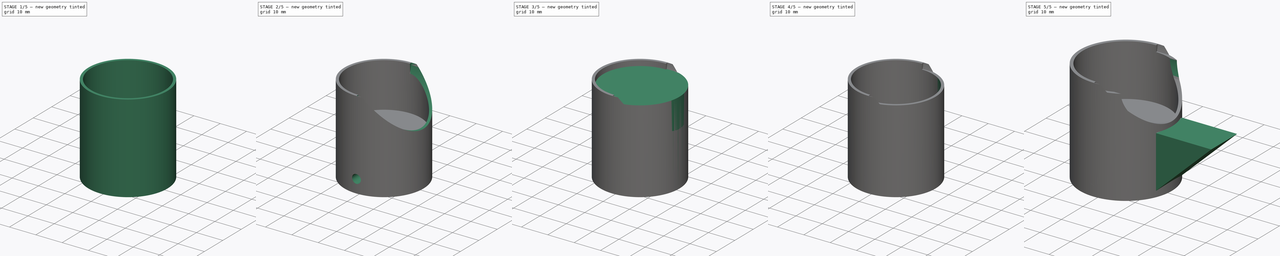
[diagram: build sequence overview — one tinted view per stage of 5, left to right]
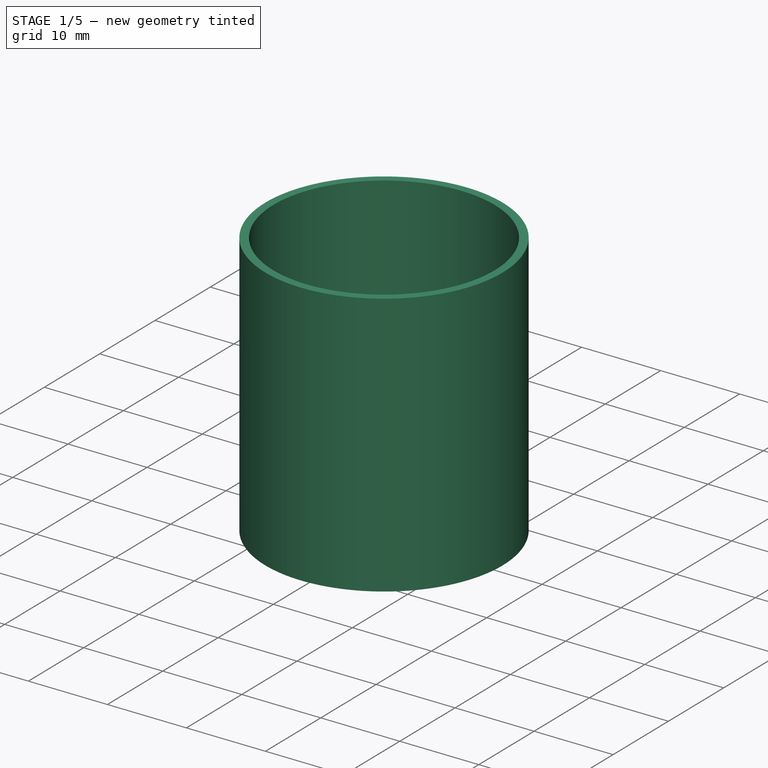
[diagram: stage 1 of 5 — iso view after this stage's code; geometry added in this stage tinted green]
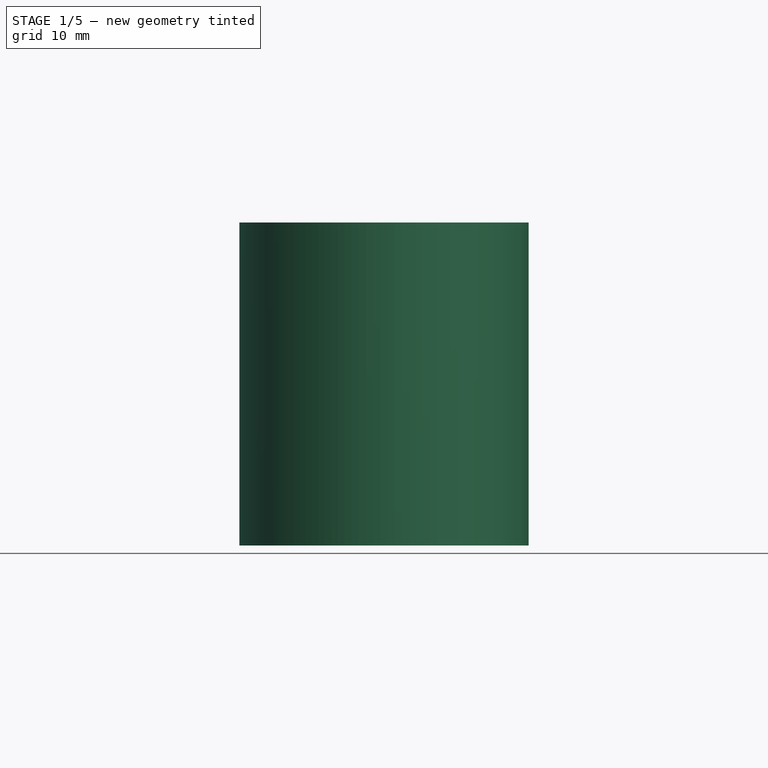
[diagram: stage 1 of 5 — front view after this stage's code; geometry added in this stage tinted green]
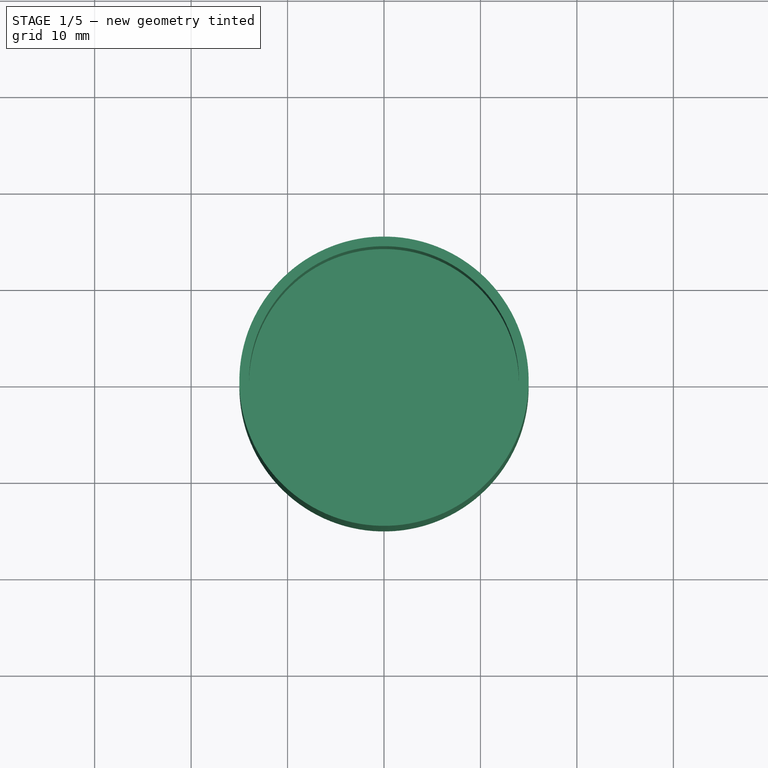
[diagram: stage 1 of 5 — top view after this stage's code; geometry added in this stage tinted green]
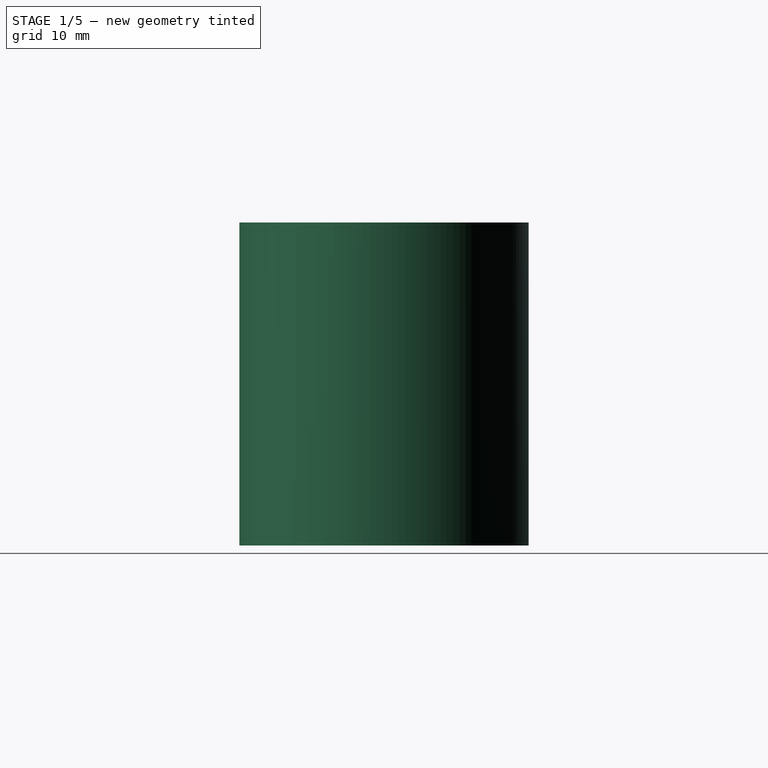
[diagram: stage 1 of 5 — right view after this stage's code; geometry added in this stage tinted green]
FCSTD DOCUMENT  (FreeCAD 0.19R24276 (Git))
Label: D4
License: All rights reserved
LicenseURL: http://en.wikipedia.org/wiki/All_rights_reserved
objects: Sketcher::SketchObject×19, PartDesign::Pocket×16, PartDesign::Pad×3, PartDesign::Body×2
note: 59 computed .brp shape members not serialized (recipe doc carries the construction recipe); baked Part::Feature solids carry a one-line shape summary decoded from their .brp

FEATURE [Sketcher::SketchObject] Sketch016
  FullyConstrained = true
  MapMode = 5
  Support = -> [XY_Plane002]
  sketch-geometry (1):
    g0: Circle CenterX=0 CenterY=0 CenterZ=0 NormalX=0 NormalY=0 NormalZ=1 AngleXU=0 Radius=15
  constraints (2):
    c: Coincident(g0,g-1)
    c: Radius(g0) = 15
FEATURE [PartDesign::Pad] Pad002
  Direction = (1,1,1)
  Length = 33.5
  Length2 = 100
  Profile = -> Sketch016
  Type = 0
FEATURE [Sketcher::SketchObject] Sketch017
  FullyConstrained = true
  MapMode = 5
  Placement = pos=(0,0,0) rot=(1,0,0;3.14159rad)
  Support = -> [Pad002]
  sketch-geometry (1):
    g0: Circle CenterX=0 CenterY=0 CenterZ=0 NormalX=0 NormalY=0 NormalZ=1 AngleXU=0 Radius=10.15
  constraints (2):
    c: Coincident(g0,g-1)
    c: Radius(g0) = 10.15
FEATURE [PartDesign::Pocket] Pocket011
  BaseFeature = -> Pad002
  Length = 11
  Length2 = 100
  Profile = -> Sketch017
  Type = 0
FEATURE [Sketcher::SketchObject] Sketch012
  FullyConstrained = true
  MapMode = 5
  Placement = pos=(0,0,11) rot=(1,0,0;3.14159rad)
  Support = -> [Pocket011]
  sketch-geometry (1):
    g0: Circle CenterX=0 CenterY=0 CenterZ=0 NormalX=0 NormalY=0 NormalZ=1 AngleXU=0 Radius=6.15
  constraints (2):
    c: Coincident(g0,g-1)
    c: Radius(g0) = 6.15
FEATURE [PartDesign::Pocket] Pocket010  label="WASHER_HOLLOW002"
  BaseFeature = -> Pocket011
  Length = 2.5
  Length2 = 100
  Profile = -> Sketch012
  Type = 0
FEATURE [Sketcher::SketchObject] Sketch014
  FullyConstrained = true
  MapMode = 5
  Placement = pos=(0,0,33.5) rot=(0,0,1;0rad)
  Support = -> [Pocket010]
  sketch-geometry (1):
    g0: Circle CenterX=0 CenterY=0 CenterZ=0 NormalX=0 NormalY=0 NormalZ=1 AngleXU=0 Radius=14
  constraints (2):
    c: Coincident(g0,g-1)
    c: Radius(g0) = 14
FEATURE [Sketcher::SketchObject] Sketch018
  FullyConstrained = true
  MapMode = 5
  Placement = pos=(0,0,0) rot=(0.57735,0.57735,0.57735;2.0944rad)
  Support = -> [YZ_Plane002]
  sketch-geometry (1):
    g0: Circle CenterX=0 CenterY=35.5 CenterZ=0 NormalX=0 NormalY=0 NormalZ=1 AngleXU=0 Radius=15
  constraints (3):
    c: PointOnObject(g0,g-2)
    c: DistanceY(g-1,g0) = 35.5
    c: Radius(g0) = 15
FEATURE [PartDesign::Pocket] Pocket015  label="VR_CAVITY002"
  BaseFeature = -> Pocket010
  Length = 17
  Length2 = 100
  Profile = -> Sketch014
  Type = 0
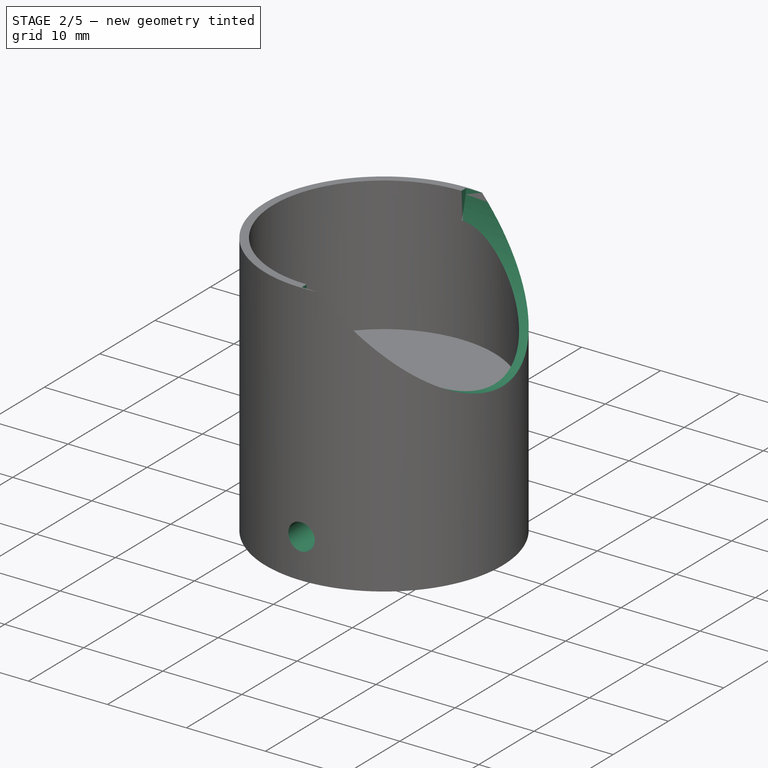
[diagram: stage 2 of 5 — iso view after this stage's code; geometry added in this stage tinted green]
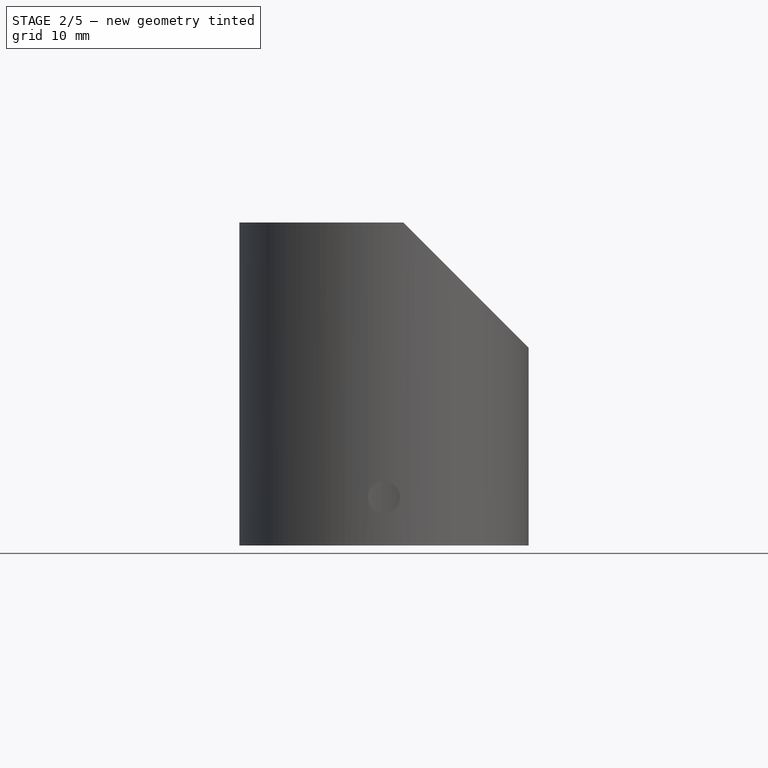
[diagram: stage 2 of 5 — front view after this stage's code; geometry added in this stage tinted green]
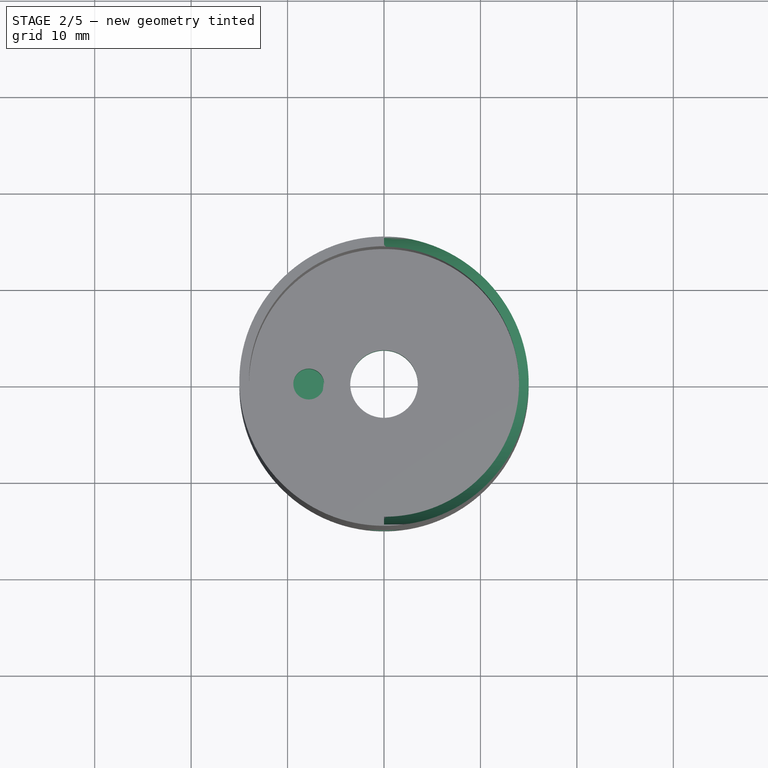
[diagram: stage 2 of 5 — top view after this stage's code; geometry added in this stage tinted green]
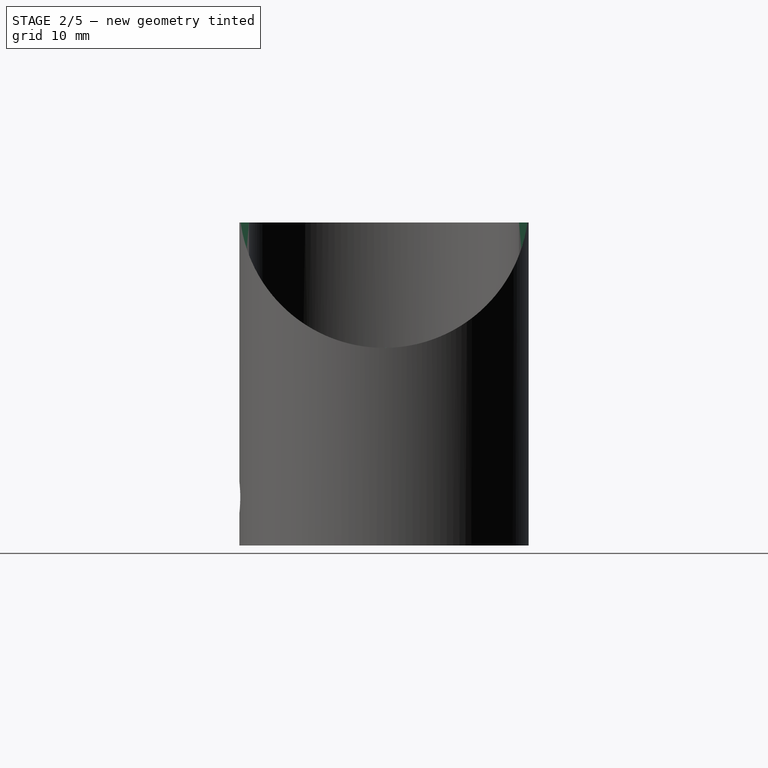
[diagram: stage 2 of 5 — right view after this stage's code; geometry added in this stage tinted green]
FEATURE [Sketcher::SketchObject] Sketch013
  FullyConstrained = true
  MapMode = 5
  Placement = pos=(0,0,13.5) rot=(1,0,0;3.14159rad)
  Support = -> [Pocket015]
  sketch-geometry (1):
    g0: Circle CenterX=0 CenterY=0 CenterZ=0 NormalX=0 NormalY=0 NormalZ=1 AngleXU=0 Radius=3.5
  constraints (2):
    c: Coincident(g0,g-1)
    c: Radius(g0) = 3.5
FEATURE [PartDesign::Pocket] Pocket014  label="SHAFT_HOLE002"
  BaseFeature = -> Pocket015
  Length = 3
  Length2 = 100
  Profile = -> Sketch013
  Type = 0
FEATURE [Sketcher::SketchObject] Sketch015
  FullyConstrained = true
  MapMode = 5
  Placement = pos=(0,0,16.5) rot=(0,0,1;0rad)
  Support = -> [Pocket014]
  sketch-geometry (1):
    g0: Circle CenterX=-7.8 CenterY=0 CenterZ=0 NormalX=0 NormalY=0 NormalZ=1 AngleXU=0 Radius=1.6
  constraints (3):
    c: PointOnObject(g0,g-1)
    c: Radius(g0) = 1.6
    c: DistanceX(g0,g-1) = 7.8
FEATURE [PartDesign::Pocket] Pocket012
  BaseFeature = -> Pocket014
  Length = 3
  Length2 = 100
  Profile = -> Sketch015
  Type = 0
FEATURE [PartDesign::Pocket] Pocket013
  BaseFeature = -> Pocket012
  Length = 16
  Length2 = 100
  Profile = -> Sketch018
  Reversed = true
  Type = 0
FEATURE [PartDesign::Body] Body001
  Group = -> [Sketch006,Pad001,Sketch007,Pocket005,Sketch008,Pocket006,Sketch009,Pocket007,Sketch010,Pocket008,Sketch011,Pocket009,Sketch,Pocket,Sketch019,Pad,Sketch020,Pocket016,Sketch021,Pocket017]
  Origin = -> Origin001
  Placement = pos=(35,0,46) rot=(0,-1,0;1.5708rad)
  Tip = -> Pocket017
FEATURE [Sketcher::SketchObject] Sketch022
  FullyConstrained = true
  MapMode = 5
  Placement = pos=(0,0,0) rot=(1,0,0;1.5708rad)
  Support = -> [XZ_Plane002]
  sketch-geometry (1):
    g0: Circle CenterX=0 CenterY=5 CenterZ=0 NormalX=0 NormalY=0 NormalZ=1 AngleXU=0 Radius=1.67
  constraints (3):
    c: PointOnObject(g0,g-2)
    c: Radius(g0) = 1.67
    c: DistanceY(g0,g-1) = -5
FEATURE [PartDesign::Pocket] Pocket018
  BaseFeature = -> Pocket013
  Length = 17
  Length2 = 100
  Profile = -> Sketch022
  Reversed = true
  Type = 0
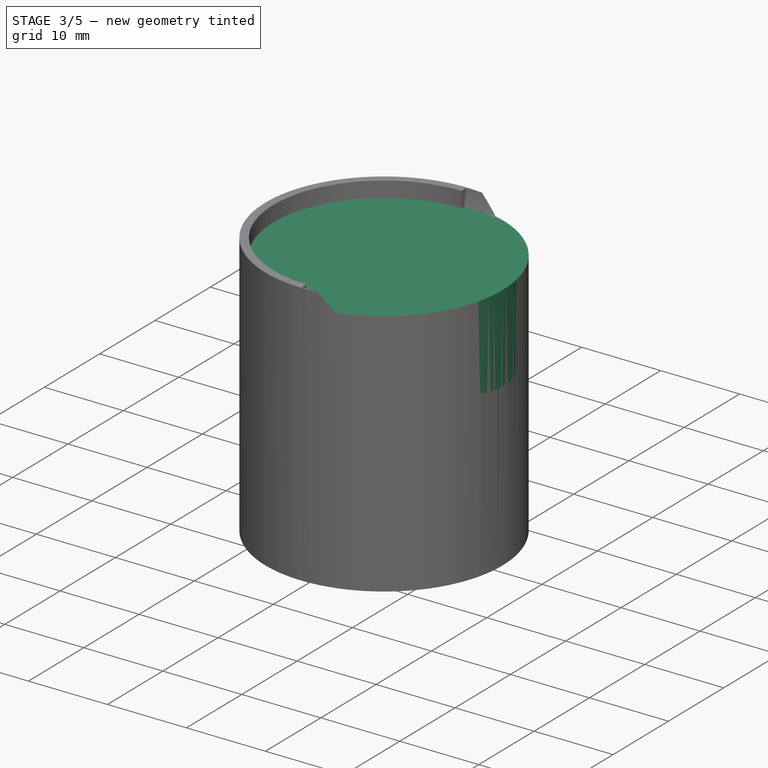
[diagram: stage 3 of 5 — iso view after this stage's code; geometry added in this stage tinted green]
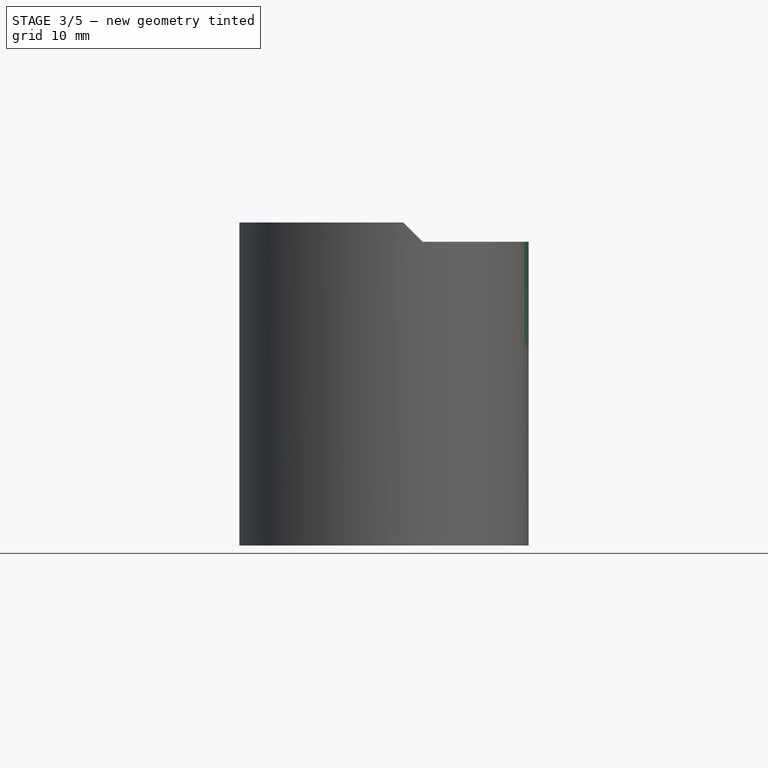
[diagram: stage 3 of 5 — front view after this stage's code; geometry added in this stage tinted green]
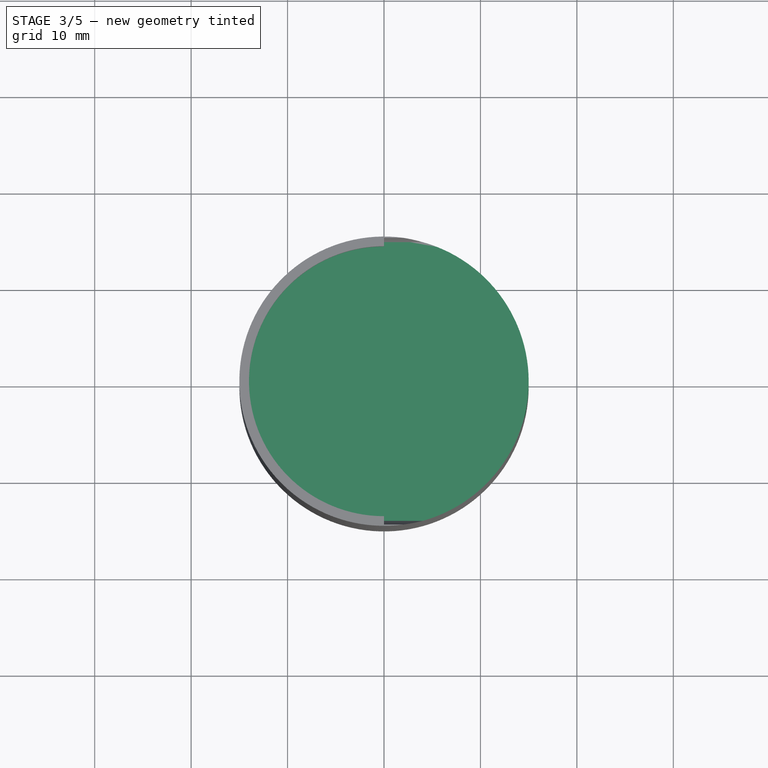
[diagram: stage 3 of 5 — top view after this stage's code; geometry added in this stage tinted green]
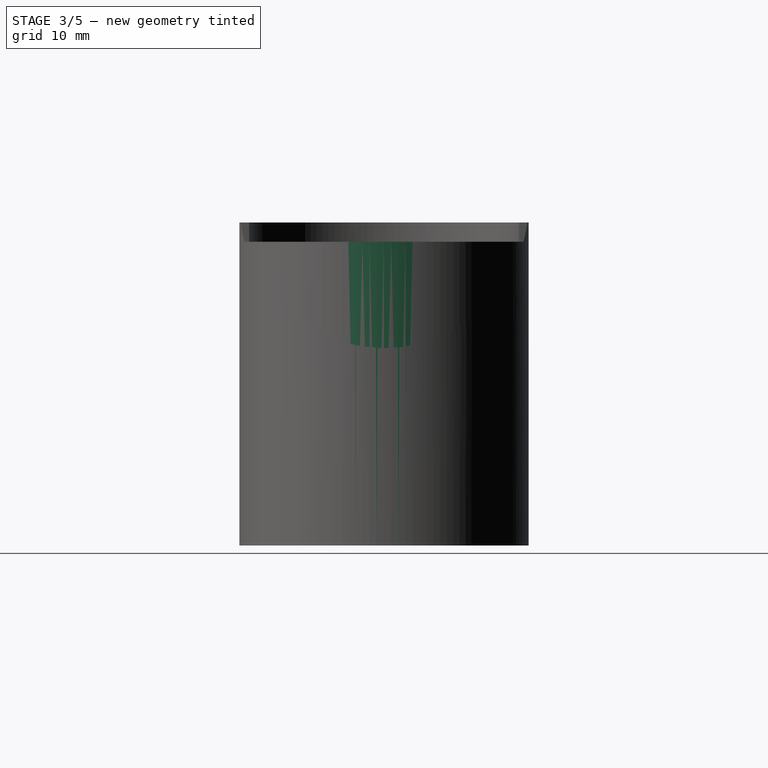
[diagram: stage 3 of 5 — right view after this stage's code; geometry added in this stage tinted green]
FEATURE [Sketcher::SketchObject] Sketch006
  FullyConstrained = true
  MapMode = 5
  Support = -> [XY_Plane001]
  sketch-geometry (1):
    g0: Circle CenterX=0 CenterY=0 CenterZ=0 NormalX=0 NormalY=0 NormalZ=1 AngleXU=0 Radius=15
  constraints (2):
    c: Coincident(g0,g-1)
    c: Radius(g0) = 15
FEATURE [PartDesign::Pad] Pad001
  Direction = (1,1,1)
  Length = 31.5
  Length2 = 100
  Profile = -> Sketch006
  Type = 0
FEATURE [Sketcher::SketchObject] Sketch007
  FullyConstrained = true
  MapMode = 5
  Placement = pos=(0,0,0) rot=(1,0,0;3.14159rad)
  Support = -> [Pad001]
  sketch-geometry (1):
    g0: Circle CenterX=0 CenterY=0 CenterZ=0 NormalX=0 NormalY=0 NormalZ=1 AngleXU=0 Radius=10.15
  constraints (2):
    c: Coincident(g0,g-1)
    c: Radius(g0) = 10.15
FEATURE [PartDesign::Pocket] Pocket005
  BaseFeature = -> Pad001
  Length = 11
  Length2 = 100
  Profile = -> Sketch007
  Type = 0
FEATURE [Sketcher::SketchObject] Sketch023
  FullyConstrained = true
  MapMode = 5
  Placement = pos=(0,0,0) rot=(1,0,0;1.5708rad)
  Support = -> [XZ_Plane002]
  sketch-geometry (7):
    g0: LineSegment StartX=1.625 StartY=2.18542 StartZ=0 EndX=3.25 EndY=5 EndZ=0
    g1: LineSegment StartX=3.25 StartY=5 StartZ=0 EndX=1.625 EndY=7.81458 EndZ=0
    g2: LineSegment StartX=1.625 StartY=7.81458 StartZ=0 EndX=-1.625 EndY=7.81458 EndZ=0
    g3: LineSegment StartX=-1.625 StartY=7.81458 StartZ=0 EndX=-3.25 EndY=5 EndZ=0
    g4: LineSegment StartX=-3.25 StartY=5 StartZ=0 EndX=-1.625 EndY=2.18542 EndZ=0
    g5: LineSegment StartX=-1.625 StartY=2.18542 StartZ=0 EndX=1.625 EndY=2.18542 EndZ=0
    g6: Circle CenterX=0 CenterY=5 CenterZ=0 NormalX=0 NormalY=0 NormalZ=1 AngleXU=0 Radius=3.25
  constraints (17):
    c: Coincident(g0,g1)
    c: Coincident(g1,g2)
    c: Coincident(g2,g3)
    c: Coincident(g3,g4)
    c: Coincident(g4,g5)
    c: Coincident(g5,g0)
    c: Equal(g0, g1-g5) x5
    c: PointOnObject(g0,g6)
    c: PointOnObject(g1,g6)
    c: PointOnObject(g2,g6)
    c: PointOnObject(g3,g6)
    c: PointOnObject(g4,g6)
    c: PointOnObject(g5,g6)
    c: PointOnObject(g6,g-2)
    c: Radius(g6) = 3.25
    c: Perpendicular(g-2,g2)
    c: DistanceY(g-1,g6) = 5
FEATURE [PartDesign::Pocket] Pocket019
  BaseFeature = -> Pocket018
  Length = 12.4
  Length2 = 100
  Profile = -> Sketch023
  Reversed = true
  Type = 0
FEATURE [PartDesign::Body] Body002
  Group = -> [Sketch016,Pad002,Sketch017,Pocket011,Sketch012,Pocket010,Sketch014,Pocket015,Sketch013,Pocket014,Sketch015,Pocket012,Sketch018,Pocket013,Sketch022,Pocket018,Sketch023,Pocket019]
  Origin = -> Origin002
  Placement = pos=(2.49487,0.00678181,82) rot=(1,0,0;3.14159rad)
  Tip = -> Pocket019
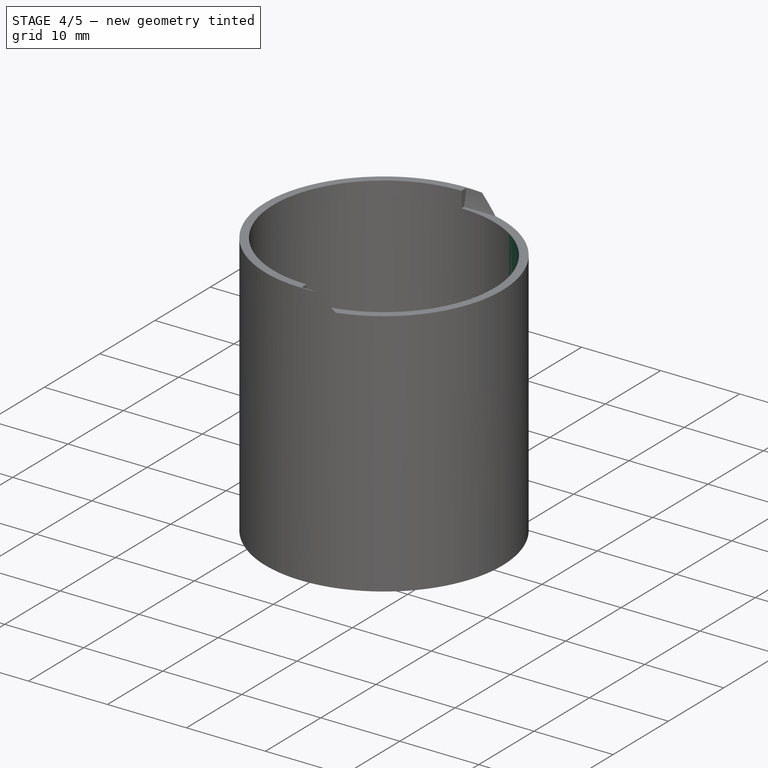
[diagram: stage 4 of 5 — iso view after this stage's code; geometry added in this stage tinted green]
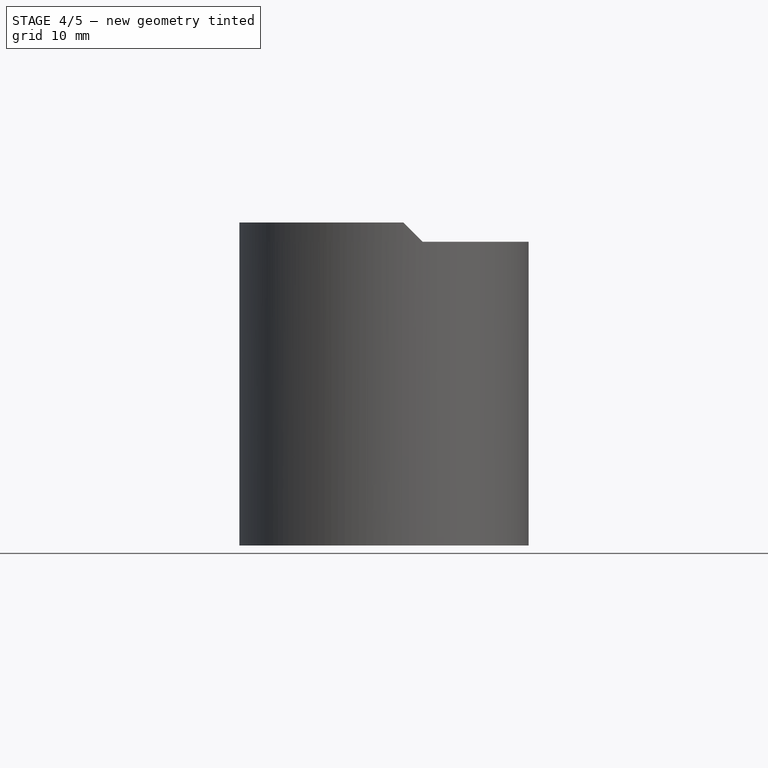
[diagram: stage 4 of 5 — front view after this stage's code; geometry added in this stage tinted green]
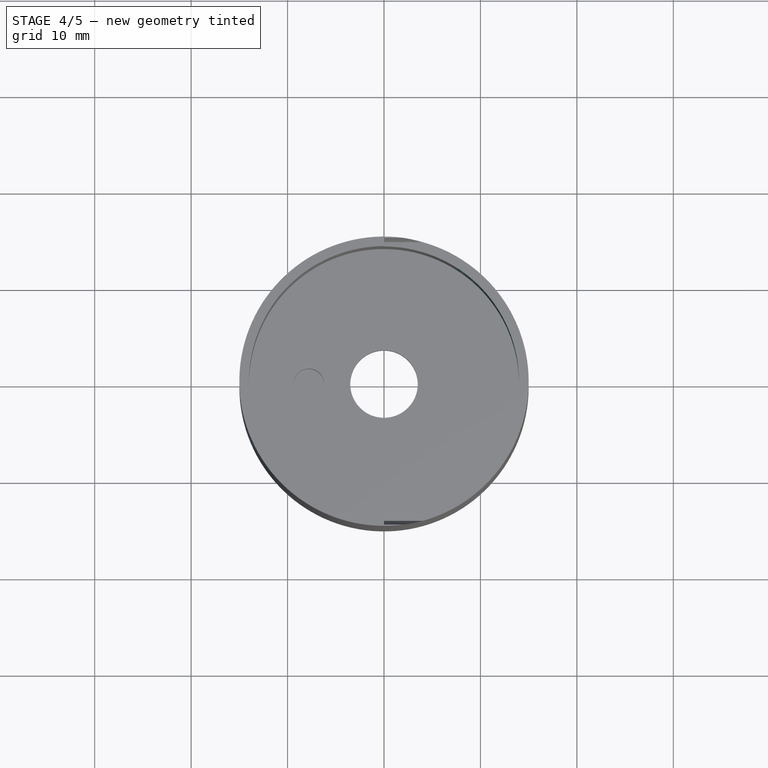
[diagram: stage 4 of 5 — top view after this stage's code; geometry added in this stage tinted green]
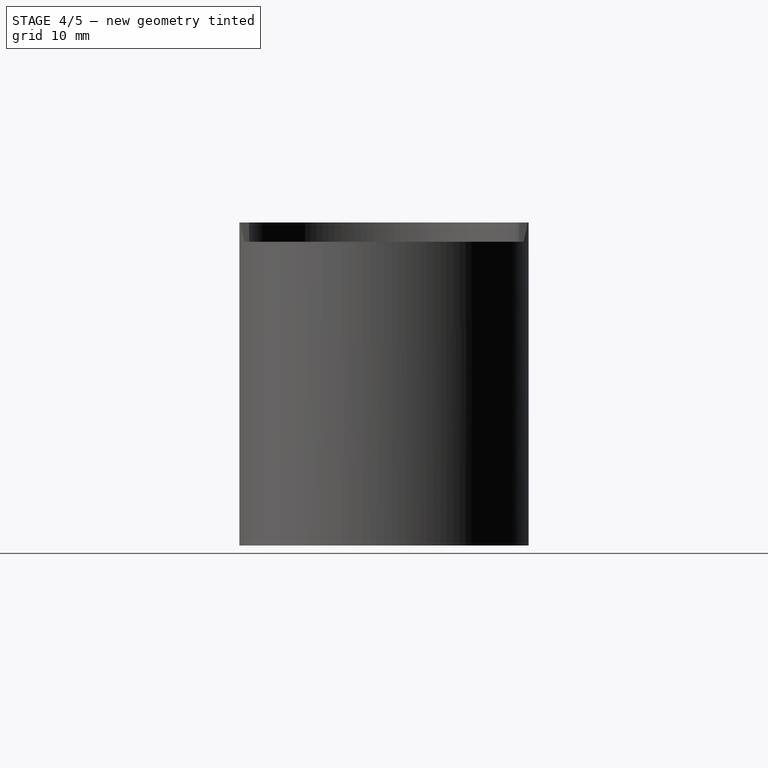
[diagram: stage 4 of 5 — right view after this stage's code; geometry added in this stage tinted green]
FEATURE [Sketcher::SketchObject] Sketch008
  FullyConstrained = true
  MapMode = 5
  Placement = pos=(0,0,11) rot=(1,0,0;3.14159rad)
  Support = -> [Pocket005]
  sketch-geometry (1):
    g0: Circle CenterX=0 CenterY=0 CenterZ=0 NormalX=0 NormalY=0 NormalZ=1 AngleXU=0 Radius=6.15
  constraints (2):
    c: Coincident(g0,g-1)
    c: Radius(g0) = 6.15
FEATURE [PartDesign::Pocket] Pocket006  label="WASHER_HOLLOW001"
  BaseFeature = -> Pocket005
  Length = 2.5
  Length2 = 100
  Profile = -> Sketch008
  Type = 0
FEATURE [Sketcher::SketchObject] Sketch009
  FullyConstrained = true
  MapMode = 5
  Placement = pos=(0,0,31.5) rot=(0,0,1;0rad)
  Support = -> [Pocket006]
  sketch-geometry (1):
    g0: Circle CenterX=0 CenterY=0 CenterZ=0 NormalX=0 NormalY=0 NormalZ=1 AngleXU=0 Radius=14
  constraints (2):
    c: Coincident(g0,g-1)
    c: Radius(g0) = 14
FEATURE [PartDesign::Pocket] Pocket007  label="VR_CAVITY001"
  BaseFeature = -> Pocket006
  Length = 15
  Length2 = 100
  Profile = -> Sketch009
  Type = 0
FEATURE [Sketcher::SketchObject] Sketch010
  FullyConstrained = true
  MapMode = 5
  Placement = pos=(0,0,13.5) rot=(1,0,0;3.14159rad)
  Support = -> [Pocket007]
  sketch-geometry (1):
    g0: Circle CenterX=0 CenterY=0 CenterZ=0 NormalX=0 NormalY=0 NormalZ=1 AngleXU=0 Radius=3.5
  constraints (2):
    c: Coincident(g0,g-1)
    c: Radius(g0) = 3.5
FEATURE [PartDesign::Pocket] Pocket008  label="SHAFT_HOLE001"
  BaseFeature = -> Pocket007
  Length = 3
  Length2 = 100
  Profile = -> Sketch010
  Type = 0
FEATURE [Sketcher::SketchObject] Sketch011
  FullyConstrained = true
  MapMode = 5
  Placement = pos=(0,0,16.5) rot=(0,0,1;0rad)
  Support = -> [Pocket008]
  sketch-geometry (1):
    g0: Circle CenterX=-7.8 CenterY=0 CenterZ=0 NormalX=0 NormalY=0 NormalZ=1 AngleXU=0 Radius=1.6
  constraints (3):
    c: PointOnObject(g0,g-1)
    c: Radius(g0) = 1.6
    c: DistanceX(g0,g-1) = 7.8
FEATURE [PartDesign::Pocket] Pocket009
  BaseFeature = -> Pocket008
  Length = 3
  Length2 = 100
  Profile = -> Sketch011
  Type = 0
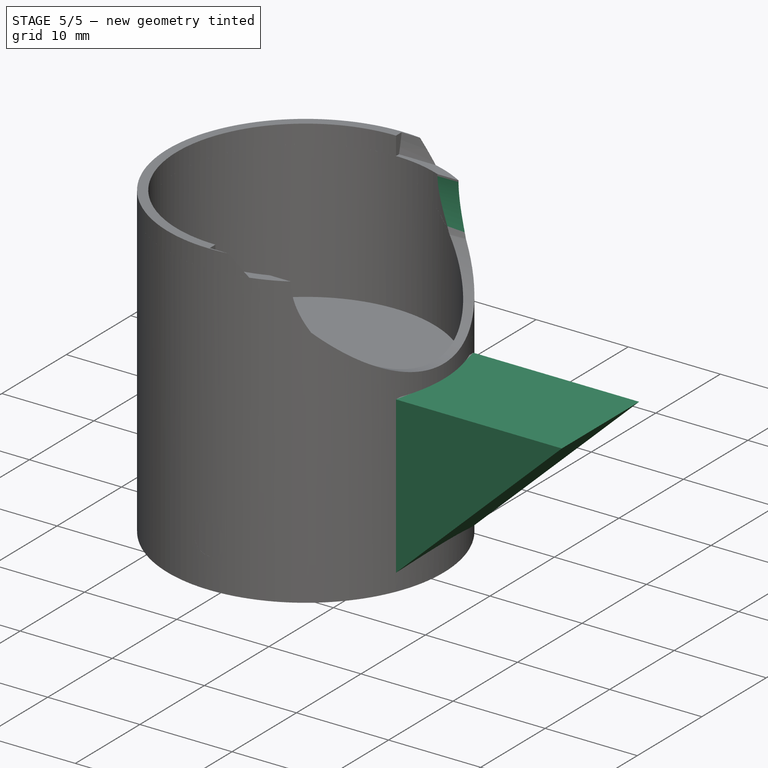
[diagram: stage 5 of 5 — iso view after this stage's code; geometry added in this stage tinted green]
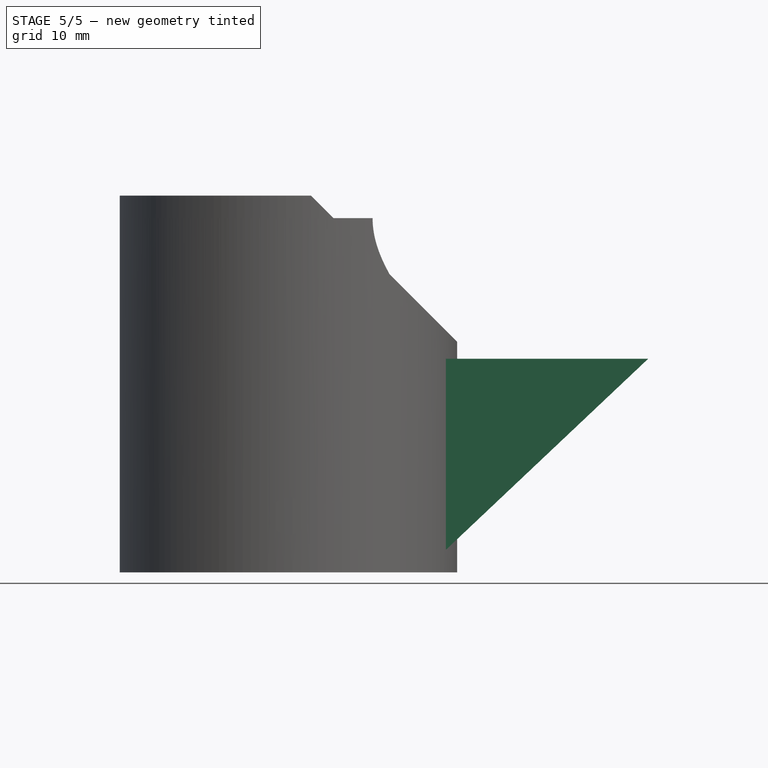
[diagram: stage 5 of 5 — front view after this stage's code; geometry added in this stage tinted green]
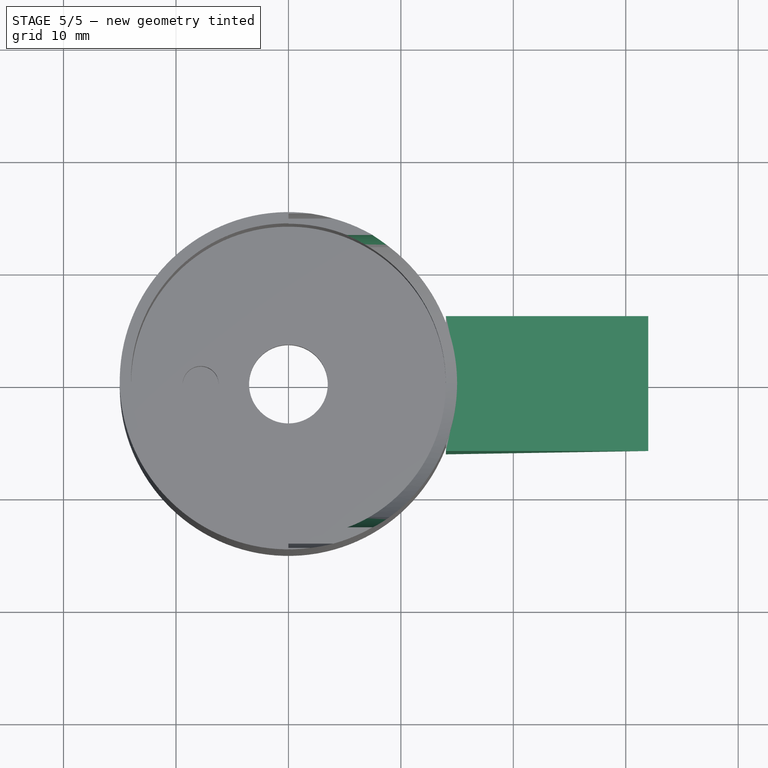
[diagram: stage 5 of 5 — top view after this stage's code; geometry added in this stage tinted green]
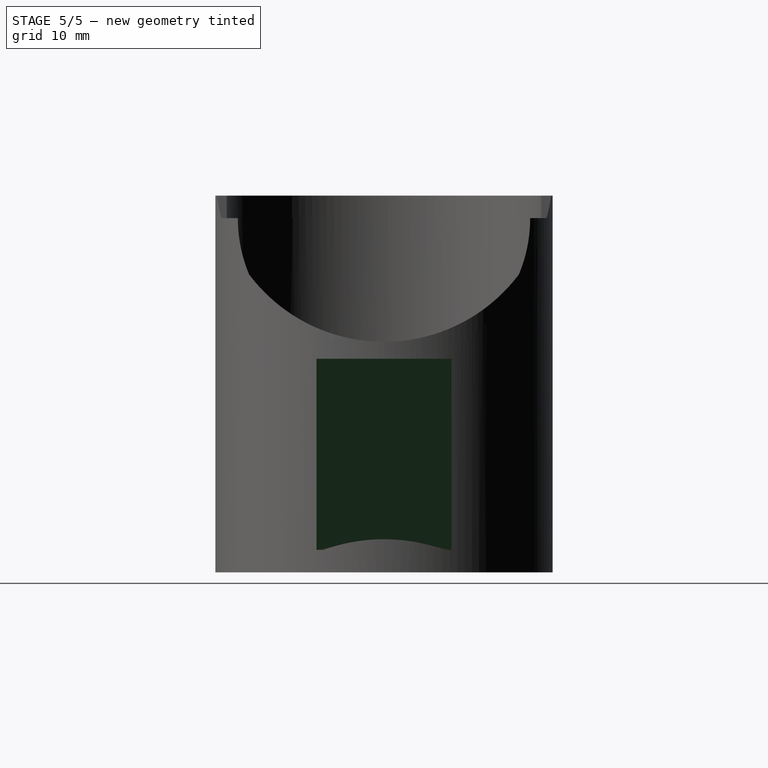
[diagram: stage 5 of 5 — right view after this stage's code; geometry added in this stage tinted green]
FEATURE [Sketcher::SketchObject] Sketch
  FullyConstrained = true
  MapMode = 5
  Placement = pos=(0,0,0) rot=(0.57735,0.57735,0.57735;2.0944rad)
  Support = -> [YZ_Plane001]
  sketch-geometry (1):
    g0: Circle CenterX=0 CenterY=31.5 CenterZ=0 NormalX=0 NormalY=0 NormalZ=1 AngleXU=0 Radius=13
  constraints (3):
    c: PointOnObject(g0,g-2)
    c: DistanceY(g-1,g0) = 31.5
    c: Radius(g0) = 13
FEATURE [PartDesign::Pocket] Pocket
  BaseFeature = -> Pocket009
  Length = 15
  Length2 = 100
  Profile = -> Sketch
  Reversed = true
  Type = 0
FEATURE [Sketcher::SketchObject] Sketch019
  FullyConstrained = true
  MapMode = 5
  Placement = pos=(0,0,0) rot=(1,0,0;1.5708rad)
  Support = -> [XZ_Plane001]
  sketch-geometry (3):
    g0: LineSegment StartX=14 StartY=2 StartZ=0 EndX=32 EndY=19 EndZ=0
    g1: LineSegment StartX=32 StartY=19 StartZ=0 EndX=14 EndY=19 EndZ=0
    g2: LineSegment StartX=14 StartY=19 StartZ=0 EndX=14 EndY=2 EndZ=0
  constraints (9):
    c: Parallel(g-2,g2)
    c: Parallel(g1,g-1)
    c: Coincident(g0,g2)
    c: Coincident(g2,g1)
    c: DistanceX(g1,g1) = 18
    c: DistanceY(g2,g2) = 17
    c: Coincident(g0,g1)
    c: DistanceX(g-1,g1) = 14
    c: DistanceY(g-1,g1) = 19
FEATURE [PartDesign::Pad] Pad
  BaseFeature = -> Pocket
  Direction = (1,1,1)
  Length = 6
  Length2 = 6
  Profile = -> Sketch019
  Type = 4
FEATURE [Sketcher::SketchObject] Sketch020
  FullyConstrained = true
  MapMode = 5
  Placement = pos=(0,0,0) rot=(1,0,0;1.5708rad)
  Support = -> [XZ_Plane001]
  sketch-geometry (1):
    g0: Circle CenterX=0 CenterY=5 CenterZ=0 NormalX=0 NormalY=0 NormalZ=1 AngleXU=0 Radius=1.67
  constraints (3):
    c: PointOnObject(g0,g-2)
    c: Radius(g0) = 1.67
    c: DistanceY(g0,g-1) = -5
FEATURE [PartDesign::Pocket] Pocket016
  BaseFeature = -> Pad
  Length = 16
  Length2 = 100
  Profile = -> Sketch020
  Type = 0
FEATURE [Sketcher::SketchObject] Sketch021
  FullyConstrained = true
  MapMode = 5
  Placement = pos=(0,0,0) rot=(1,0,0;1.5708rad)
  Support = -> [XZ_Plane001]
  sketch-geometry (7):
    g0: LineSegment StartX=3.25 StartY=5 StartZ=0 EndX=1.625 EndY=7.81458 EndZ=0
    g1: LineSegment StartX=1.625 StartY=7.81458 StartZ=0 EndX=-1.625 EndY=7.81458 EndZ=0
    g2: LineSegment StartX=-1.625 StartY=7.81458 StartZ=0 EndX=-3.25 EndY=5 EndZ=0
    g3: LineSegment StartX=-3.25 StartY=5 StartZ=0 EndX=-1.625 EndY=2.18542 EndZ=0
    g4: LineSegment StartX=-1.625 StartY=2.18542 StartZ=0 EndX=1.625 EndY=2.18542 EndZ=0
    g5: LineSegment StartX=1.625 StartY=2.18542 StartZ=0 EndX=3.25 EndY=5 EndZ=0
    g6: Circle CenterX=0 CenterY=5 CenterZ=0 NormalX=0 NormalY=0 NormalZ=1 AngleXU=0 Radius=3.25
  constraints (17):
    c: Coincident(g0,g1)
    c: Coincident(g1,g2)
    c: Coincident(g2,g3)
    c: Coincident(g3,g4)
    c: Coincident(g4,g5)
    c: Coincident(g5,g0)
    c: Equal(g0, g1-g5) x5
    c: PointOnObject(g0,g6)
    c: PointOnObject(g1,g6)
    c: PointOnObject(g2,g6)
    c: PointOnObject(g3,g6)
    c: PointOnObject(g4,g6)
    c: PointOnObject(g5,g6)
    c: PointOnObject(g6,g-2)
    c: Radius(g6) = 3.25
    c: Perpendicular(g1,g-2)
    c: DistanceY(g6,g-1) = -5
FEATURE [PartDesign::Pocket] Pocket017
  BaseFeature = -> Pocket016
  Length = 12.4
  Length2 = 100
  Profile = -> Sketch021
  Type = 0
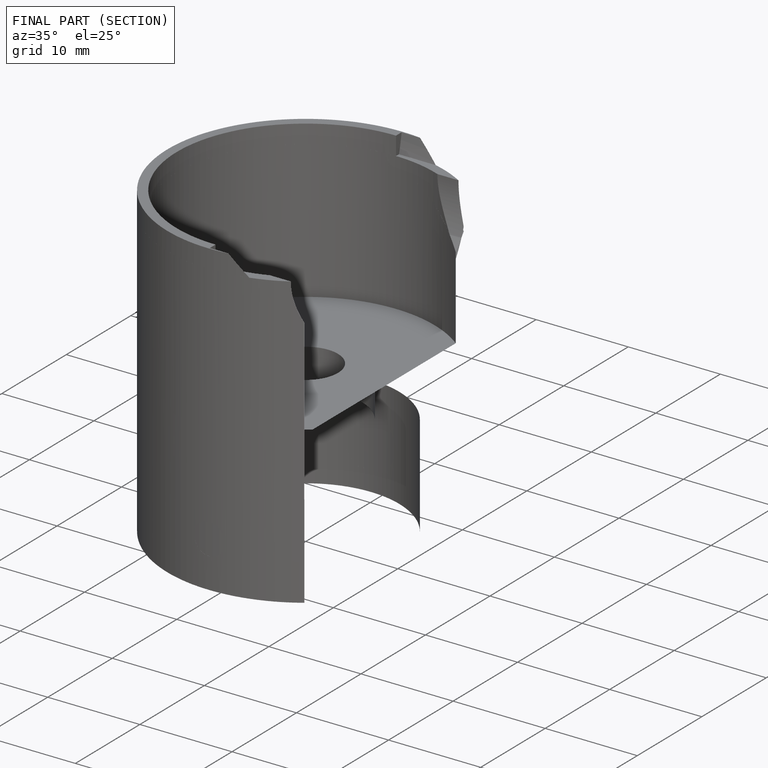
[diagram: finished part — half-section view (interior)]
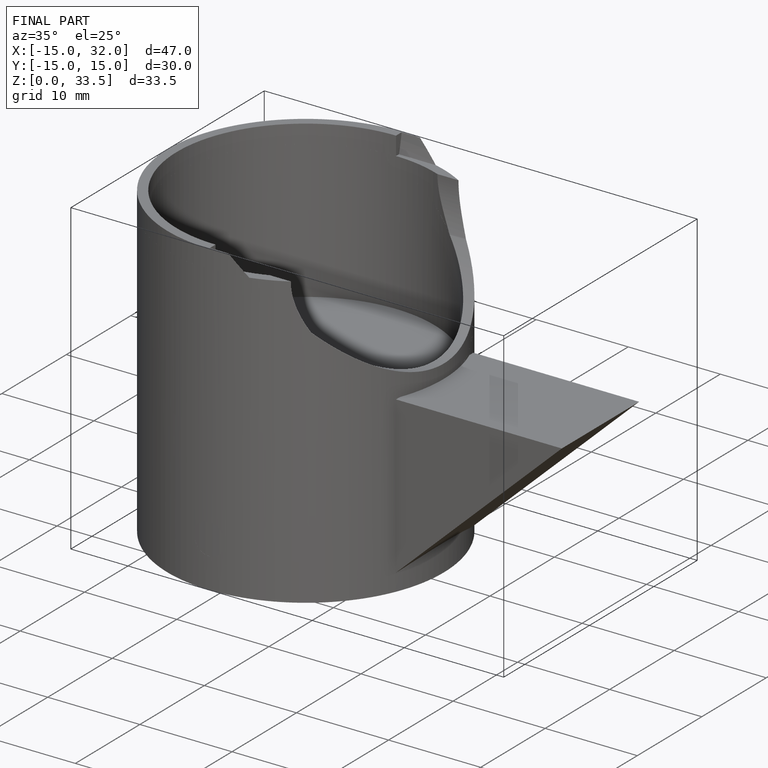
[diagram: finished part — iso view with bounding-box wireframe]
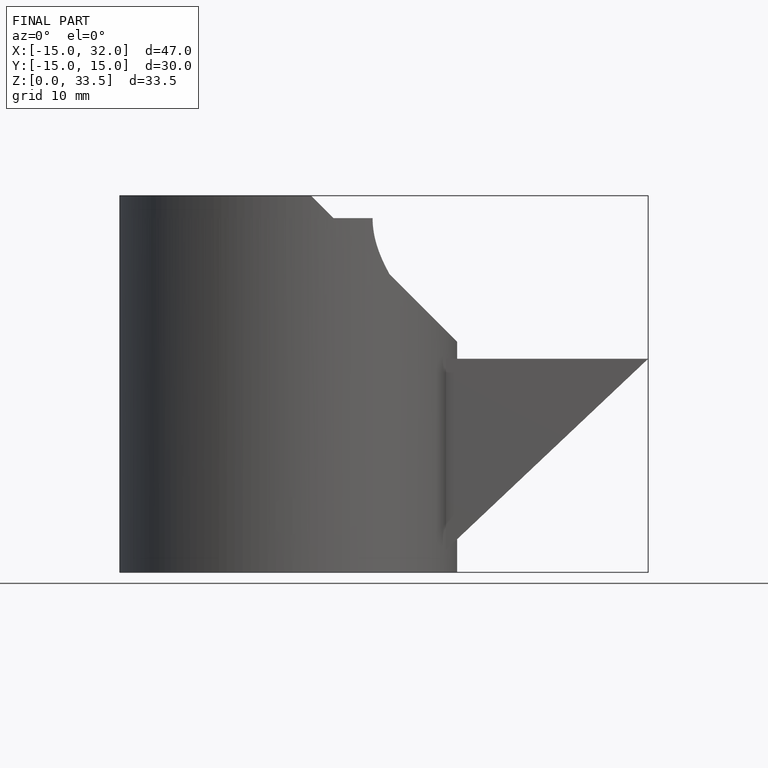
[diagram: finished part — front view with bounding-box wireframe]
